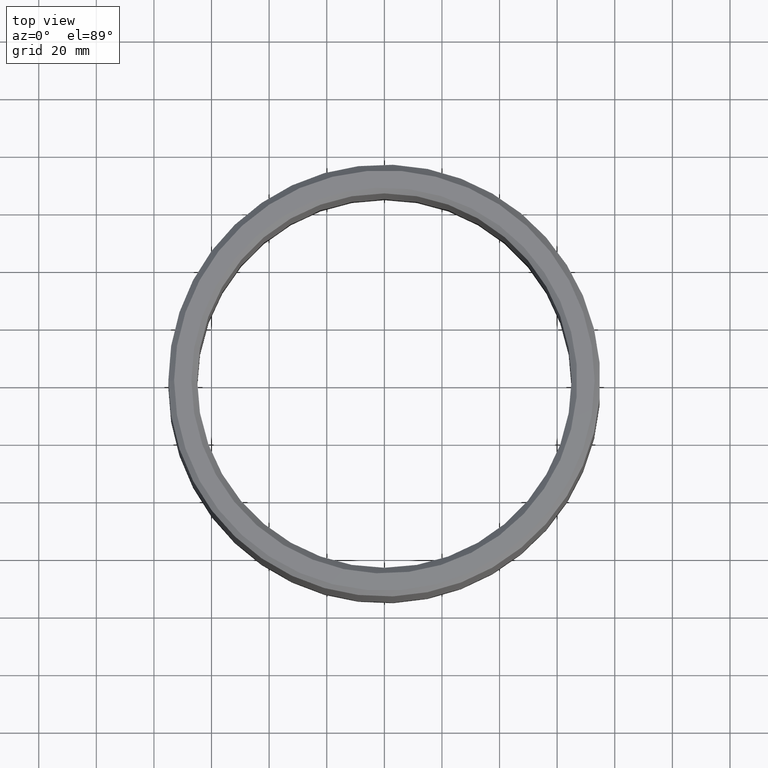
[diagram: clean part render]
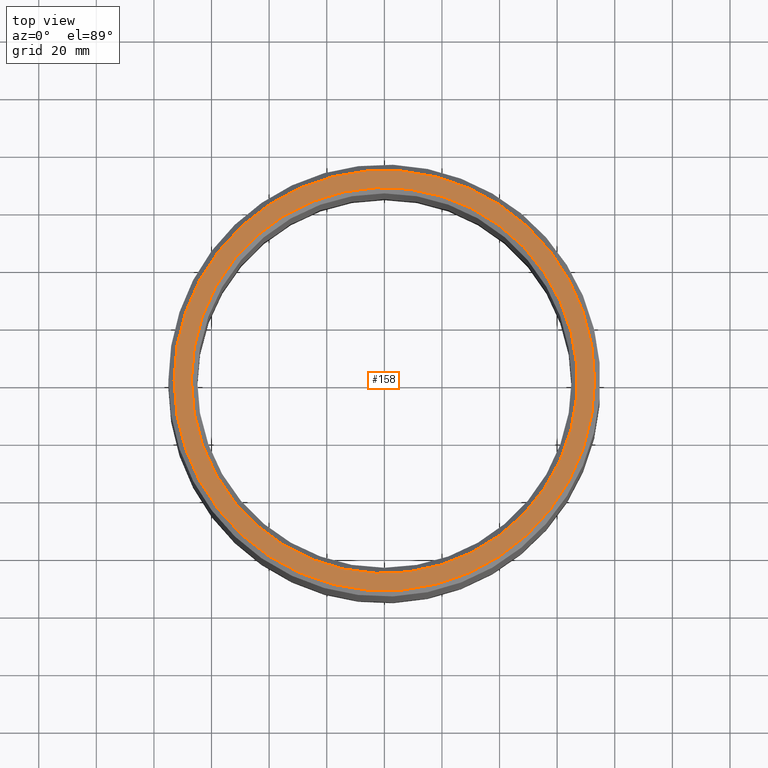
[diagram: same view with one face highlighted and labeled with its STEP entity id]
A machine part, top view. The second image highlights one B-rep face of the part: STEP entity #158.
In plain terms, the highlighted planar face has unit normal (0, -0, 1).
Its self-contained STEP definition (entity closure, byte-faithful):
#158=ADVANCED_FACE('',(#180,#181),#182,.T.);
#180=FACE_BOUND('',#4065,.T.);
#181=FACE_OUTER_BOUND('',#4066,.T.);
#182=PLANE('',#4067);
#4065=EDGE_LOOP('',(#7971));
#4066=EDGE_LOOP('',(#7972));
#4067=AXIS2_PLACEMENT_3D('',#7973,#7974,#7975);
#7971=ORIENTED_EDGE('',*,*,#8024,.T.);
#7972=ORIENTED_EDGE('',*,*,#8025,.F.);
#7973=CARTESIAN_POINT('',(0.073,6.93889390390723E-018,0.14));
#7974=DIRECTION('',(0.0,6.12323399573677E-017,1.0));
#7975=DIRECTION('',(0.0,-1.0,6.12323399573677E-017));
#8024=EDGE_CURVE('',#8054,#8054,#8055,.T.);
#8025=EDGE_CURVE('',#8056,#8056,#8057,.T.);
#8054=VERTEX_POINT('',#8326);
#8055=CIRCLE('',#8327,0.067);
#8056=VERTEX_POINT('',#8328);
#8057=CIRCLE('',#8329,0.073);
#8326=CARTESIAN_POINT('',(0.0,0.067,0.14));
#8327=AXIS2_PLACEMENT_3D('',#8360,#8361,#8362);
#8328=CARTESIAN_POINT('',(0.0,0.073,0.14));
#8329=AXIS2_PLACEMENT_3D('',#8363,#8364,#8365);
#8360=CARTESIAN_POINT('',(0.0,6.93889390390723E-018,0.14));
#8361=DIRECTION('',(0.0,-6.12323399573677E-017,-1.0));
#8362=DIRECTION('',(0.0,1.0,-6.12323399573677E-017));
#8363=CARTESIAN_POINT('',(0.0,6.93889390390723E-018,0.14));
#8364=DIRECTION('',(0.0,-6.12323399573677E-017,-1.0));
#8365=DIRECTION('',(0.0,1.0,-6.12323399573677E-017));